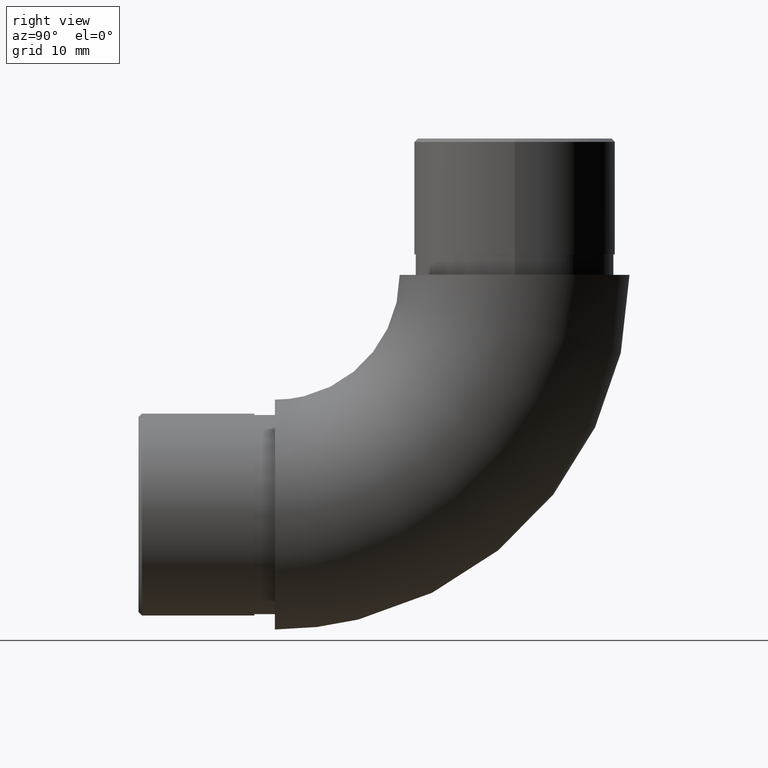
[diagram: clean part render]
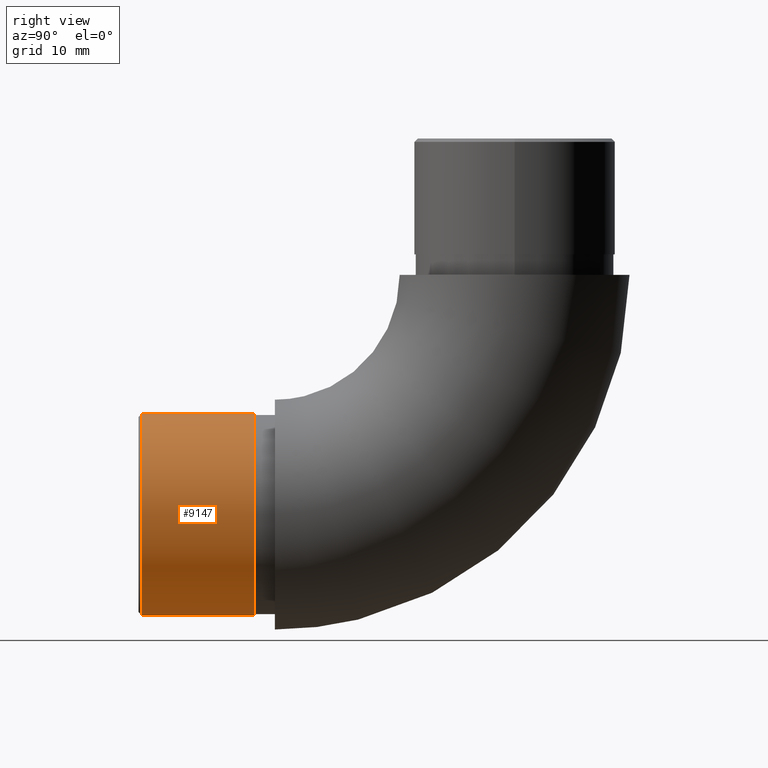
[diagram: same view with one face highlighted and labeled with its STEP entity id]
A machine part, right view. The second image highlights one B-rep face of the part: STEP entity #9147.
In plain terms, the highlighted cylindrical surface (bore or boss wall) has radius 14.8 mm, axis along (-0, 1, -0).
Its self-contained STEP definition (entity closure, byte-faithful):
#410 = DIRECTION ( 'NONE',  ( 0.0000000000000000000, -1.000000000000000000, 0.0000000000000000000 ) ) ;
#574 = ORIENTED_EDGE ( 'NONE', *, *, #4967, .T. ) ;
#728 = DIRECTION ( 'NONE',  ( 0.0000000000000000000, 0.0000000000000000000, 1.000000000000000000 ) ) ;
#1040 = FACE_OUTER_BOUND ( 'NONE', #8407, .T. ) ;
#1197 = CIRCLE ( 'NONE', #7886, 14.80000000000000100 ) ;
#1354 = ORIENTED_EDGE ( 'NONE', *, *, #10928, .T. ) ;
#2154 = FACE_OUTER_BOUND ( 'NONE', #10321, .T. ) ;
#2487 = CARTESIAN_POINT ( 'NONE',  ( 0.0000000000000000000, -3.000000000000000000, 2.050000000000003400 ) ) ;
#2648 = CYLINDRICAL_SURFACE ( 'NONE', #5786, 14.80000000000000100 ) ;
#4967 = EDGE_CURVE ( 'NONE', #11367, #11367, #7409, .T. ) ;
#5049 = VERTEX_POINT ( 'NONE', #9783 ) ;
#5389 = CARTESIAN_POINT ( 'NONE',  ( 0.0000000000000000000, -20.00000000000000000, 16.85000000000000500 ) ) ;
#5786 = AXIS2_PLACEMENT_3D ( 'NONE', #5389, #5964, #728 ) ;
#5964 = DIRECTION ( 'NONE',  ( -0.0000000000000000000, 1.000000000000000000, -0.0000000000000000000 ) ) ;
#6141 = DIRECTION ( 'NONE',  ( 0.0000000000000000000, 1.000000000000000000, 0.0000000000000000000 ) ) ;
#7409 = CIRCLE ( 'NONE', #8611, 14.80000000000000100 ) ;
#7886 = AXIS2_PLACEMENT_3D ( 'NONE', #10700, #6141, #8855 ) ;
#8290 = CARTESIAN_POINT ( 'NONE',  ( 0.0000000000000000000, -3.000000000000000000, 16.85000000000000500 ) ) ;
#8407 = EDGE_LOOP ( 'NONE', ( #1354 ) ) ;
#8611 = AXIS2_PLACEMENT_3D ( 'NONE', #8290, #410, #10906 ) ;
#8855 = DIRECTION ( 'NONE',  ( 0.0000000000000000000, 0.0000000000000000000, -1.000000000000000000 ) ) ;
#9147 = ADVANCED_FACE ( 'NONE', ( #1040, #2154 ), #2648, .T. ) ;
#9783 = CARTESIAN_POINT ( 'NONE',  ( 0.0000000000000000000, -19.50000000000001800, 2.050000000000003400 ) ) ;
#10321 = EDGE_LOOP ( 'NONE', ( #574 ) ) ;
#10700 = CARTESIAN_POINT ( 'NONE',  ( 0.0000000000000000000, -19.50000000000001800, 16.85000000000000500 ) ) ;
#10906 = DIRECTION ( 'NONE',  ( 0.0000000000000000000, 0.0000000000000000000, -1.000000000000000000 ) ) ;
#10928 = EDGE_CURVE ( 'NONE', #5049, #5049, #1197, .T. ) ;
#11367 = VERTEX_POINT ( 'NONE', #2487 ) ;